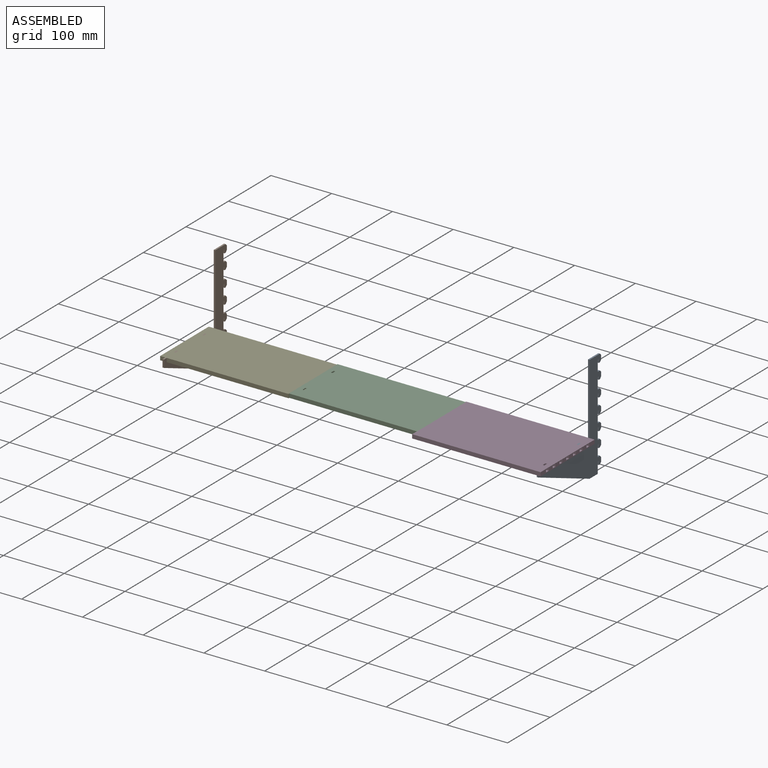
[diagram: assembled view]
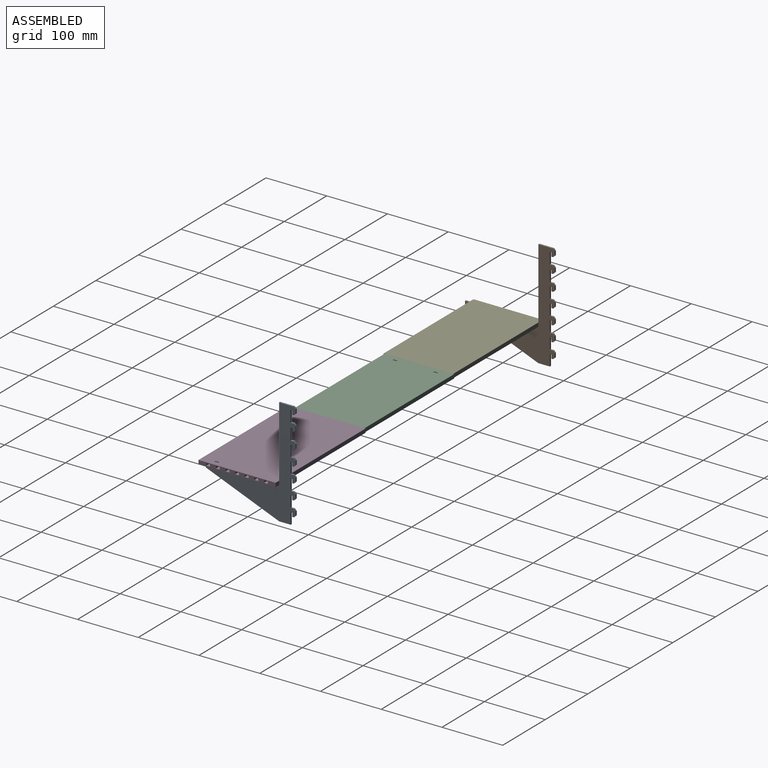
[diagram: assembled view, second angle]
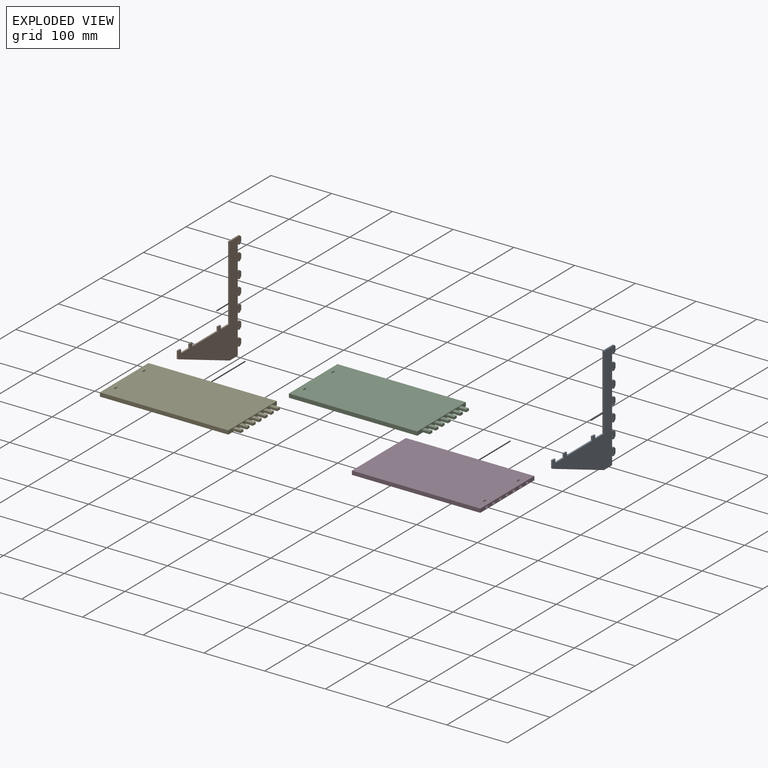
[diagram: exploded view]
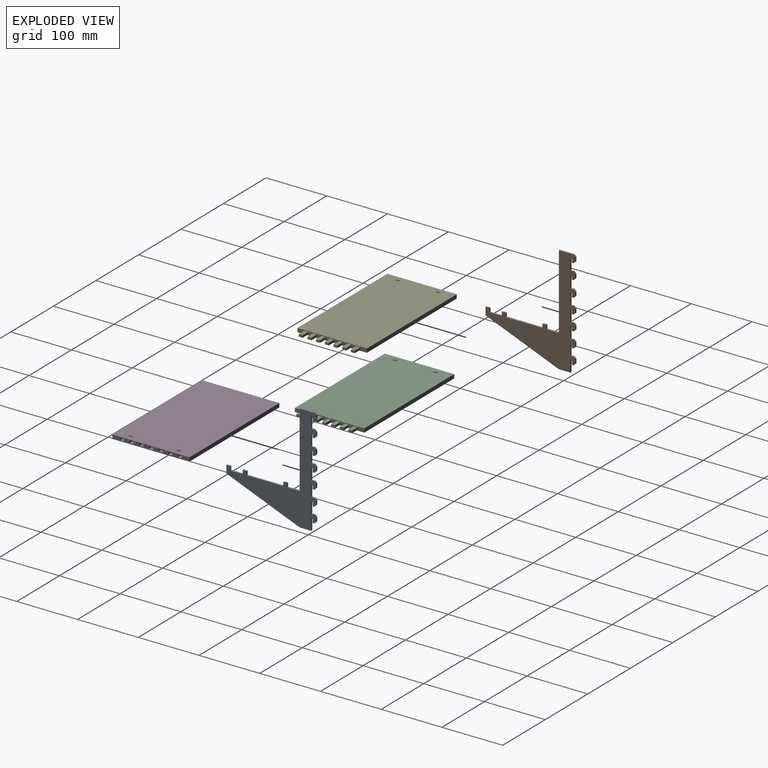
[diagram: exploded view, second angle]
ASSEMBLY  parts=5 mates=4
PART A: 73 faces, bbox 147.8x177x2.6 mm
  f0: plane 24.13x2.59mm, normal (0,1,0), area 62.5mm2, adj f56,f57,f58,f59
  f1: plane 19.05x2.59mm, normal (0,-1,0), area 49.4mm2, adj f2,f57,f58,f72
  f2: plane 18.6x2.59mm, normal (1,0,0), area 48.2mm2, adj f1,f3,f57,f58
  f3: plane 2.59x2.49mm, normal (0,-1,0), area 6.4mm2, adj f2,f4,f57,f58
  f4: plane 6.3x2.59mm, normal (-1,0,0), area 16.3mm2, adj f3,f5,f57,f58
  f5: plane 2.59x2.59mm, normal (0,-1,0), area 6.7mm2, adj f4,f6,f57,f58
  f6: plane 3x3mm, normal (0.71,-0.71,0), area 11mm2, adj f5,f7,f57,f58
  f7: plane 6.81x2.59mm, normal (1,0,0), area 17.6mm2, adj f6,f8,f57,f58
  f8: plane 3x3mm, normal (0.71,0.71,0), area 11mm2, adj f7,f9,f57,f58
  f9: plane 5.08x2.59mm, normal (0,1,0), area 13.2mm2, adj f8,f10,f57,f58
  f10: plane 18.59x2.59mm, normal (1,0,0), area 48.2mm2, adj f9,f11,f57,f58
  f11: plane 2.59x2.49mm, normal (0,-1,0), area 6.4mm2, adj f10,f12,f57,f58
  f12: plane 6.3x2.59mm, normal (-1,0,0), area 16.3mm2, adj f11,f13,f57,f58
  f13: plane 2.59x2.59mm, normal (0.01,-1,0), area 6.7mm2, adj f12,f14,f57,f58
  f14: plane 3x3mm, normal (0.71,-0.71,0), area 11mm2, adj f13,f15,f57,f58
  f15: plane 6.81x2.59mm, normal (1,0,0), area 17.6mm2, adj f14,f16,f57,f58
  f16: plane 3x3mm, normal (0.71,0.71,0), area 11mm2, adj f15,f17,f57,f58
  f17: plane 5.08x2.59mm, normal (0,1,0), area 13.2mm2, adj f16,f18,f57,f58
  f18: plane 18.59x2.59mm, normal (1,0,0), area 48.2mm2, adj f17,f19,f57,f58
  f19: plane 2.59x2.49mm, normal (0,-1,0), area 6.4mm2, adj f18,f20,f57,f58
  f20: plane 6.3x2.59mm, normal (-1,0,0), area 16.3mm2, adj f19,f21,f57,f58
  f21: plane 2.59x2.59mm, normal (0,-1,0), area 6.7mm2, adj f20,f22,f57,f58
  f22: plane 3x3mm, normal (0.71,-0.71,0), area 11mm2, adj f21,f23,f57,f58
  f23: plane 6.81x2.59mm, normal (1,0,0), area 17.6mm2, adj f22,f24,f57,f58
  f24: plane 3x3mm, normal (0.71,0.71,0), area 11mm2, adj f23,f25,f57,f58
  f25: plane 5.08x2.59mm, normal (0,1,0), area 13.2mm2, adj f24,f26,f57,f58
  f26: plane 18.59x2.59mm, normal (1,0,0), area 48.2mm2, adj f25,f27,f57,f58
  f27: plane 2.59x2.49mm, normal (0,-1,0), area 6.4mm2, adj f26,f28,f57,f58
  f28: plane 6.3x2.59mm, normal (-1,0,0), area 16.3mm2, adj f27,f29,f57,f58
  f29: plane 2.59x2.59mm, normal (0,-1,0), area 6.7mm2, adj f28,f30,f57,f58
  f30: plane 3x3mm, normal (0.71,-0.71,0), area 11mm2, adj f29,f31,f57,f58
  f31: plane 6.81x2.59mm, normal (1,0,0), area 17.6mm2, adj f30,f32,f57,f58
  f32: plane 3x3mm, normal (0.71,0.71,0), area 11mm2, adj f31,f33,f57,f58
  f33: plane 5.08x2.59mm, normal (0,1,0), area 13.2mm2, adj f32,f34,f57,f58
  f34: plane 18.59x2.59mm, normal (1,0,0), area 48.2mm2, adj f33,f35,f57,f58
  f35: plane 2.59x2.49mm, normal (0,-1,0), area 6.4mm2, adj f34,f36,f57,f58
  f36: plane 6.3x2.59mm, normal (-1,0,0), area 16.3mm2, adj f35,f37,f57,f58
  f37: plane 2.59x2.59mm, normal (-0.12,-0.99,0), area 6.8mm2, adj f36,f38,f57,f58
  f38: plane 3x3mm, normal (0.71,-0.71,0), area 11mm2, adj f37,f39,f57,f58
  f39: plane 6.81x2.59mm, normal (1,0,0), area 17.6mm2, adj f38,f40,f57,f58
  f40: plane 3x3mm, normal (0.71,0.71,0), area 11mm2, adj f39,f41,f57,f58
  f41: plane 5.08x2.59mm, normal (0,1,0), area 13.2mm2, adj f40,f42,f57,f58
  f42: plane 18.83x2.59mm, normal (1,0,0), area 48.8mm2, adj f41,f43,f57,f58
  f43: plane 2.59x2.49mm, normal (0,-1,0), area 6.4mm2, adj f42,f44,f57,f58
  f44: plane 4.98x2.59mm, normal (-1,0,0), area 12.9mm2, adj f43,f45,f57,f58
  f45: plane 2.59x2.59mm, normal (0,-1,0), area 6.7mm2, adj f44,f46,f57,f58
  f46: plane 3x3mm, normal (0.71,-0.71,0), area 11mm2, adj f45,f47,f57,f58
  f47: plane 6.81x2.59mm, normal (1,0,0), area 17.6mm2, adj f46,f48,f57,f58
  f48: plane 3x3mm, normal (0.71,0.71,0), area 11mm2, adj f47,f49,f57,f58
  f49: plane 5.08x2.59mm, normal (0,1,0), area 13.2mm2, adj f48,f50,f57,f58
  f50: plane 18.59x2.59mm, normal (1,0,0), area 48.2mm2, adj f49,f51,f57,f58
  f51: plane 2.59x2.49mm, normal (0,-1,0), area 6.4mm2, adj f50,f52,f57,f58
  f52: plane 6.3x2.59mm, normal (-1,0,0), area 16.3mm2, adj f51,f53,f57,f58
  f53: plane 2.59x2.59mm, normal (0,-1,0), area 6.7mm2, adj f52,f54,f57,f58
  f54: plane 3x3mm, normal (0.71,-0.71,0), area 11mm2, adj f53,f55,f57,f58
  f55: plane 6.81x2.59mm, normal (1,0,0), area 17.6mm2, adj f54,f56,f57,f58
  f56: plane 3x3mm, normal (0.71,0.71,0), area 11mm2, adj f0,f55,f57,f58
  f57: plane 176.96x147.78mm, normal (0,0,1), area 7683.1mm2, adj f0,f1,f2,f3,f4,f5,f6,f7
  f58: plane 176.96x147.78mm, normal (0,0,-1), area 7683.1mm2, adj f0,f1,f2,f3,f4,f5,f6,f7
  f59: plane 122.85x2.59mm, normal (-1,0,0), area 318.3mm2, adj f0,f57,f58,f60
  f60: plane 20.64x2.59mm, normal (0,1,0), area 53.5mm2, adj f57,f58,f59,f61
  f61: plane 6.35x2.59mm, normal (1,0,0), area 16.5mm2, adj f57,f58,f60,f62
  f62: plane 6.35x2.59mm, normal (0,1,0), area 16.5mm2, adj f57,f58,f61,f63
  f63: plane 6.35x2.59mm, normal (-1,0,0), area 16.5mm2, adj f57,f58,f62,f64
  f64: plane 60.33x2.59mm, normal (0,1,0), area 156.3mm2, adj f57,f58,f63,f65
  f65: plane 6.35x2.59mm, normal (1,0,0), area 16.5mm2, adj f57,f58,f64,f66
  f66: plane 6.35x2.59mm, normal (0,1,0), area 16.5mm2, adj f57,f58,f65,f67
  f67: plane 6.35x2.59mm, normal (-1,0,0), area 16.5mm2, adj f57,f58,f66,f68
  f68: plane 20.64x2.59mm, normal (0,1,0), area 53.5mm2, adj f57,f58,f67,f69
  f69: plane 6.35x2.59mm, normal (1,0,0), area 16.5mm2, adj f57,f58,f68,f70
  f70: plane 6.35x2.59mm, normal (0,1,0), area 16.5mm2, adj f57,f58,f69,f71
  f71: plane 12.53x2.59mm, normal (-1,0,0), area 32.5mm2, adj f57,f58,f70,f72
  f72: plane 120.65x47.93mm, normal (-0.37,-0.93,0), area 336.3mm2, adj f1,f57,f58,f71
PART B: same geometry as A
PART C: 84 faces, bbox 224.1x114.3x6.4 mm
  f0: plane 114.3x6.35mm, normal (-1,0,0), area 556.5mm2, adj f2,f3,f12,f13,f49,f50,f51,f52
  f1: plane 114.3x6.35mm, normal (1,0,0), area 556.5mm2, adj f2,f3,f12,f13,f14,f15,f16,f17
  f2: plane 211.43x6.35mm, normal (0,1,0), area 1342.6mm2, adj f0,f1,f12,f13
  f3: plane 211.43x6.35mm, normal (0,-1,0), area 1342.6mm2, adj f0,f1,f12,f13
  f4: plane 6.35x6.35mm, normal (-1,0,0), area 40.3mm2, adj f5,f10,f12,f13
  f5: plane 6.35x2.59mm, normal (0,1,0), area 16.5mm2, adj f4,f6,f12,f13
  f6: plane 6.35x6.35mm, normal (1,0,0), area 40.3mm2, adj f5,f10,f12,f13
  f7: plane 6.35x6.35mm, normal (-1,0,0), area 40.3mm2, adj f8,f11,f12,f13
  f8: plane 6.35x2.59mm, normal (0,1,0), area 16.5mm2, adj f7,f9,f12,f13
  f9: plane 6.35x6.35mm, normal (1,0,0), area 40.3mm2, adj f8,f11,f12,f13
  f10: plane 6.35x2.59mm, normal (0,-1,0), area 16.5mm2, adj f4,f6,f12,f13
  f11: plane 6.35x2.59mm, normal (0,-1,0), area 16.5mm2, adj f7,f9,f12,f13
  f12: plane 211.43x114.3mm, normal (0,0,1), area 24133.5mm2, adj f0,f1,f2,f3,f4,f5,f6,f7
  f13: plane 211.43x114.3mm, normal (0,0,-1), area 24133.5mm2, adj f0,f1,f2,f3,f4,f5,f6,f7
  f14: plane 12.7x3.81mm, normal (0,-1,0), area 48.4mm2, adj f1,f15,f17,f18
  f15: plane 12.7x6.35mm, normal (0,0,-1), area 80.6mm2, adj f1,f14,f16,f18
  f16: plane 12.7x3.81mm, normal (0,1,0), area 48.4mm2, adj f1,f15,f17,f18
  f17: plane 12.7x6.35mm, normal (0,0,1), area 80.6mm2, adj f1,f14,f16,f18
  f18: plane 6.35x3.81mm, normal (1,0,0), area 24.2mm2, adj f14,f15,f16,f17
  f19: plane 12.7x3.81mm, normal (0,-1,0), area 48.4mm2, adj f1,f20,f22,f23
  f20: plane 12.7x6.35mm, normal (0,0,-1), area 80.6mm2, adj f1,f19,f21,f23
  f21: plane 12.7x3.81mm, normal (0,1,0), area 48.4mm2, adj f1,f20,f22,f23
  f22: plane 12.7x6.35mm, normal (0,0,1), area 80.6mm2, adj f1,f19,f21,f23
  f23: plane 6.35x3.81mm, normal (1,0,0), area 24.2mm2, adj f19,f20,f21,f22
  f24: plane 12.7x3.81mm, normal (0,1,0), area 48.4mm2, adj f1,f25,f27,f28
  f25: plane 12.7x6.35mm, normal (0,0,1), area 80.6mm2, adj f1,f24,f26,f28
  f26: plane 12.7x3.81mm, normal (0,-1,0), area 48.4mm2, adj f1,f25,f27,f28
  f27: plane 12.7x6.35mm, normal (0,0,-1), area 80.6mm2, adj f1,f24,f26,f28
  f28: plane 6.35x3.81mm, normal (1,0,0), area 24.2mm2, adj f24,f25,f26,f27
  f29: plane 12.7x3.81mm, normal (0,1,0), area 48.4mm2, adj f1,f30,f32,f33
  f30: plane 12.7x6.35mm, normal (0,0,1), area 80.6mm2, adj f1,f29,f31,f33
  f31: plane 12.7x3.81mm, normal (0,-1,0), area 48.4mm2, adj f1,f30,f32,f33
  f32: plane 12.7x6.35mm, normal (0,0,-1), area 80.6mm2, adj f1,f29,f31,f33
  f33: plane 6.35x3.81mm, normal (1,0,0), area 24.2mm2, adj f29,f30,f31,f32
  f34: plane 12.7x3.81mm, normal (0,1,0), area 48.4mm2, adj f1,f35,f37,f38
  f35: plane 12.7x6.35mm, normal (0,0,1), area 80.6mm2, adj f1,f34,f36,f38
  f36: plane 12.7x3.81mm, normal (0,-1,0), area 48.4mm2, adj f1,f35,f37,f38
  f37: plane 12.7x6.35mm, normal (0,0,-1), area 80.6mm2, adj f1,f34,f36,f38
  f38: plane 6.35x3.81mm, normal (1,0,0), area 24.2mm2, adj f34,f35,f36,f37
  f39: plane 12.7x3.81mm, normal (0,1,0), area 48.4mm2, adj f1,f40,f42,f43
  f40: plane 12.7x6.35mm, normal (0,0,1), area 80.6mm2, adj f1,f39,f41,f43
  f41: plane 12.7x3.81mm, normal (0,-1,0), area 48.4mm2, adj f1,f40,f42,f43
  f42: plane 12.7x6.35mm, normal (0,0,-1), area 80.6mm2, adj f1,f39,f41,f43
  f43: plane 6.35x3.81mm, normal (1,0,0), area 24.2mm2, adj f39,f40,f41,f42
  f44: plane 12.7x3.81mm, normal (0,1,0), area 48.4mm2, adj f1,f45,f47,f48
  f45: plane 12.7x6.35mm, normal (0,0,1), area 80.6mm2, adj f1,f44,f46,f48
  f46: plane 12.7x3.81mm, normal (0,-1,0), area 48.4mm2, adj f1,f45,f47,f48
  f47: plane 12.7x6.35mm, normal (0,0,-1), area 80.6mm2, adj f1,f44,f46,f48
  f48: plane 6.35x3.81mm, normal (1,0,0), area 24.2mm2, adj f44,f45,f46,f47
  f49: plane 13.97x6.35mm, normal (0,0,-1), area 88.7mm2, adj f0,f50,f52,f53
  f50: plane 13.97x3.81mm, normal (0,-1,0), area 53.2mm2, adj f0,f49,f51,f53
  f51: plane 13.97x6.35mm, normal (0,0,1), area 88.7mm2, adj f0,f50,f52,f53
  f52: plane 13.97x3.81mm, normal (0,1,0), area 53.2mm2, adj f0,f49,f51,f53
  f53: plane 6.35x3.81mm, normal (-1,0,0), area 24.2mm2, adj f49,f50,f51,f52
  f54: plane 13.97x3.81mm, normal (0,1,0), area 53.2mm2, adj f0,f55,f57,f58
  f55: plane 13.97x6.35mm, normal (0,0,-1), area 88.7mm2, adj f0,f54,f56,f58
  f56: plane 13.97x3.81mm, normal (0,-1,0), area 53.2mm2, adj f0,f55,f57,f58
  f57: plane 13.97x6.35mm, normal (0,0,1), area 88.7mm2, adj f0,f54,f56,f58
  f58: plane 6.35x3.81mm, normal (-1,0,0), area 24.2mm2, adj f54,f55,f56,f57
  f59: plane 13.97x3.81mm, normal (0,1,0), area 53.2mm2, adj f0,f60,f62,f63
  f60: plane 13.97x6.35mm, normal (0,0,-1), area 88.7mm2, adj f0,f59,f61,f63
  f61: plane 13.97x3.81mm, normal (0,-1,0), area 53.2mm2, adj f0,f60,f62,f63
  f62: plane 13.97x6.35mm, normal (0,0,1), area 88.7mm2, adj f0,f59,f61,f63
  f63: plane 6.35x3.81mm, normal (-1,0,0), area 24.2mm2, adj f59,f60,f61,f62
  f64: plane 13.97x3.81mm, normal (0,1,0), area 53.2mm2, adj f0,f65,f67,f68
  f65: plane 13.97x6.35mm, normal (0,0,-1), area 88.7mm2, adj f0,f64,f66,f68
  f66: plane 13.97x3.81mm, normal (0,-1,0), area 53.2mm2, adj f0,f65,f67,f68
  f67: plane 13.97x6.35mm, normal (0,0,1), area 88.7mm2, adj f0,f64,f66,f68
  f68: plane 6.35x3.81mm, normal (-1,0,0), area 24.2mm2, adj f64,f65,f66,f67
  f69: plane 13.97x3.81mm, normal (0,1,0), area 53.2mm2, adj f0,f70,f72,f73
  f70: plane 13.97x6.35mm, normal (0,0,-1), area 88.7mm2, adj f0,f69,f71,f73
  f71: plane 13.97x3.81mm, normal (0,-1,0), area 53.2mm2, adj f0,f70,f72,f73
  f72: plane 13.97x6.35mm, normal (0,0,1), area 88.7mm2, adj f0,f69,f71,f73
  f73: plane 6.35x3.81mm, normal (-1,0,0), area 24.2mm2, adj f69,f70,f71,f72
  f74: plane 13.97x6.35mm, normal (0,0,-1), area 88.7mm2, adj f0,f75,f77,f78
  f75: plane 13.97x3.81mm, normal (0,-1,0), area 53.2mm2, adj f0,f74,f76,f78
  f76: plane 13.97x6.35mm, normal (0,0,1), area 88.7mm2, adj f0,f75,f77,f78
  f77: plane 13.97x3.81mm, normal (0,1,0), area 53.2mm2, adj f0,f74,f76,f78
  f78: plane 6.35x3.81mm, normal (-1,0,0), area 24.2mm2, adj f74,f75,f76,f77
  f79: plane 13.97x6.35mm, normal (0,0,-1), area 88.7mm2, adj f0,f80,f82,f83
  f80: plane 13.97x3.81mm, normal (0,-1,0), area 53.2mm2, adj f0,f79,f81,f83
  f81: plane 13.97x6.35mm, normal (0,0,1), area 88.7mm2, adj f0,f80,f82,f83
  f82: plane 13.97x3.81mm, normal (0,1,0), area 53.2mm2, adj f0,f79,f81,f83
  f83: plane 6.35x3.81mm, normal (-1,0,0), area 24.2mm2, adj f79,f80,f81,f82
PART D: 84 faces, bbox 211.4x127x6.4 mm
  f0: plane 127x6.35mm, normal (1,0,0), area 637.1mm2, adj f2,f3,f12,f13,f49,f50,f51,f52
  f1: plane 127x6.35mm, normal (-1,0,0), area 637.1mm2, adj f2,f3,f12,f13,f14,f15,f16,f17
  f2: plane 211.43x6.35mm, normal (0,1,0), area 1342.6mm2, adj f0,f1,f12,f13
  f3: plane 211.43x6.35mm, normal (0,-1,0), area 1342.6mm2, adj f0,f1,f12,f13
  f4: plane 6.35x6.35mm, normal (-1,0,0), area 40.3mm2, adj f5,f10,f12,f13
  f5: plane 6.35x2.59mm, normal (0,1,0), area 16.5mm2, adj f4,f6,f12,f13
  f6: plane 6.35x6.35mm, normal (1,0,0), area 40.3mm2, adj f5,f10,f12,f13
  f7: plane 6.35x6.35mm, normal (-1,0,0), area 40.3mm2, adj f8,f11,f12,f13
  f8: plane 6.35x2.59mm, normal (0,1,0), area 16.5mm2, adj f7,f9,f12,f13
  f9: plane 6.35x6.35mm, normal (1,0,0), area 40.3mm2, adj f8,f11,f12,f13
  f10: plane 6.35x2.59mm, normal (0,-1,0), area 16.5mm2, adj f4,f6,f12,f13
  f11: plane 6.35x2.59mm, normal (0,-1,0), area 16.5mm2, adj f7,f9,f12,f13
  f12: plane 211.43x127mm, normal (0,0,1), area 26818.7mm2, adj f0,f1,f2,f3,f4,f5,f6,f7
  f13: plane 211.43x127mm, normal (0,0,-1), area 26818.7mm2, adj f0,f1,f2,f3,f4,f5,f6,f7
  f14: plane 13.97x6.35mm, normal (0,0,-1), area 88.7mm2, adj f1,f15,f17,f18
  f15: plane 13.97x3.81mm, normal (0,-1,0), area 53.2mm2, adj f1,f14,f16,f18
  f16: plane 13.97x6.35mm, normal (0,0,1), area 88.7mm2, adj f1,f15,f17,f18
  f17: plane 13.97x3.81mm, normal (0,1,0), area 53.2mm2, adj f1,f14,f16,f18
  f18: plane 6.35x3.81mm, normal (-1,0,0), area 24.2mm2, adj f14,f15,f16,f17
  f19: plane 13.97x3.81mm, normal (0,1,0), area 53.2mm2, adj f1,f20,f22,f23
  f20: plane 13.97x6.35mm, normal (0,0,-1), area 88.7mm2, adj f1,f19,f21,f23
  f21: plane 13.97x3.81mm, normal (0,-1,0), area 53.2mm2, adj f1,f20,f22,f23
  f22: plane 13.97x6.35mm, normal (0,0,1), area 88.7mm2, adj f1,f19,f21,f23
  f23: plane 6.35x3.81mm, normal (-1,0,0), area 24.2mm2, adj f19,f20,f21,f22
  f24: plane 13.97x3.81mm, normal (0,1,0), area 53.2mm2, adj f1,f25,f27,f28
  f25: plane 13.97x6.35mm, normal (0,0,-1), area 88.7mm2, adj f1,f24,f26,f28
  f26: plane 13.97x3.81mm, normal (0,-1,0), area 53.2mm2, adj f1,f25,f27,f28
  f27: plane 13.97x6.35mm, normal (0,0,1), area 88.7mm2, adj f1,f24,f26,f28
  f28: plane 6.35x3.81mm, normal (-1,0,0), area 24.2mm2, adj f24,f25,f26,f27
  f29: plane 13.97x3.81mm, normal (0,1,0), area 53.2mm2, adj f1,f30,f32,f33
  f30: plane 13.97x6.35mm, normal (0,0,-1), area 88.7mm2, adj f1,f29,f31,f33
  f31: plane 13.97x3.81mm, normal (0,-1,0), area 53.2mm2, adj f1,f30,f32,f33
  f32: plane 13.97x6.35mm, normal (0,0,1), area 88.7mm2, adj f1,f29,f31,f33
  f33: plane 6.35x3.81mm, normal (-1,0,0), area 24.2mm2, adj f29,f30,f31,f32
  f34: plane 13.97x3.81mm, normal (0,1,0), area 53.2mm2, adj f1,f35,f37,f38
  f35: plane 13.97x6.35mm, normal (0,0,-1), area 88.7mm2, adj f1,f34,f36,f38
  f36: plane 13.97x3.81mm, normal (0,-1,0), area 53.2mm2, adj f1,f35,f37,f38
  f37: plane 13.97x6.35mm, normal (0,0,1), area 88.7mm2, adj f1,f34,f36,f38
  f38: plane 6.35x3.81mm, normal (-1,0,0), area 24.2mm2, adj f34,f35,f36,f37
  f39: plane 13.97x6.35mm, normal (0,0,-1), area 88.7mm2, adj f1,f40,f42,f43
  f40: plane 13.97x3.81mm, normal (0,-1,0), area 53.2mm2, adj f1,f39,f41,f43
  f41: plane 13.97x6.35mm, normal (0,0,1), area 88.7mm2, adj f1,f40,f42,f43
  f42: plane 13.97x3.81mm, normal (0,1,0), area 53.2mm2, adj f1,f39,f41,f43
  f43: plane 6.35x3.81mm, normal (-1,0,0), area 24.2mm2, adj f39,f40,f41,f42
  f44: plane 13.97x6.35mm, normal (0,0,-1), area 88.7mm2, adj f1,f45,f47,f48
  f45: plane 13.97x3.81mm, normal (0,-1,0), area 53.2mm2, adj f1,f44,f46,f48
  f46: plane 13.97x6.35mm, normal (0,0,1), area 88.7mm2, adj f1,f45,f47,f48
  f47: plane 13.97x3.81mm, normal (0,1,0), area 53.2mm2, adj f1,f44,f46,f48
  f48: plane 6.35x3.81mm, normal (-1,0,0), area 24.2mm2, adj f44,f45,f46,f47
  f49: plane 13.97x3.81mm, normal (0,-1,0), area 53.2mm2, adj f0,f50,f52,f53
  f50: plane 13.97x6.35mm, normal (0,0,-1), area 88.7mm2, adj f0,f49,f51,f53
  f51: plane 13.97x3.81mm, normal (0,1,0), area 53.2mm2, adj f0,f50,f52,f53
  f52: plane 13.97x6.35mm, normal (0,0,1), area 88.7mm2, adj f0,f49,f51,f53
  f53: plane 6.35x3.81mm, normal (1,0,0), area 24.2mm2, adj f49,f50,f51,f52
  f54: plane 13.97x3.81mm, normal (0,-1,0), area 53.2mm2, adj f0,f55,f57,f58
  f55: plane 13.97x6.35mm, normal (0,0,-1), area 88.7mm2, adj f0,f54,f56,f58
  f56: plane 13.97x3.81mm, normal (0,1,0), area 53.2mm2, adj f0,f55,f57,f58
  f57: plane 13.97x6.35mm, normal (0,0,1), area 88.7mm2, adj f0,f54,f56,f58
  f58: plane 6.35x3.81mm, normal (1,0,0), area 24.2mm2, adj f54,f55,f56,f57
  f59: plane 13.97x3.81mm, normal (0,-1,0), area 53.2mm2, adj f0,f60,f62,f63
  f60: plane 13.97x6.35mm, normal (0,0,-1), area 88.7mm2, adj f0,f59,f61,f63
  f61: plane 13.97x3.81mm, normal (0,1,0), area 53.2mm2, adj f0,f60,f62,f63
  f62: plane 13.97x6.35mm, normal (0,0,1), area 88.7mm2, adj f0,f59,f61,f63
  f63: plane 6.35x3.81mm, normal (1,0,0), area 24.2mm2, adj f59,f60,f61,f62
  f64: plane 13.97x3.81mm, normal (0,1,0), area 53.2mm2, adj f0,f65,f67,f68
  f65: plane 13.97x6.35mm, normal (0,0,1), area 88.7mm2, adj f0,f64,f66,f68
  f66: plane 13.97x3.81mm, normal (0,-1,0), area 53.2mm2, adj f0,f65,f67,f68
  f67: plane 13.97x6.35mm, normal (0,0,-1), area 88.7mm2, adj f0,f64,f66,f68
  f68: plane 6.35x3.81mm, normal (1,0,0), area 24.2mm2, adj f64,f65,f66,f67
  f69: plane 13.97x3.81mm, normal (0,-1,0), area 53.2mm2, adj f0,f70,f72,f73
  f70: plane 13.97x6.35mm, normal (0,0,-1), area 88.7mm2, adj f0,f69,f71,f73
  f71: plane 13.97x3.81mm, normal (0,1,0), area 53.2mm2, adj f0,f70,f72,f73
  f72: plane 13.97x6.35mm, normal (0,0,1), area 88.7mm2, adj f0,f69,f71,f73
  f73: plane 6.35x3.81mm, normal (1,0,0), area 24.2mm2, adj f69,f70,f71,f72
  f74: plane 13.97x3.81mm, normal (0,1,0), area 53.2mm2, adj f0,f75,f77,f78
  f75: plane 13.97x6.35mm, normal (0,0,1), area 88.7mm2, adj f0,f74,f76,f78
  f76: plane 13.97x3.81mm, normal (0,-1,0), area 53.2mm2, adj f0,f75,f77,f78
  f77: plane 13.97x6.35mm, normal (0,0,-1), area 88.7mm2, adj f0,f74,f76,f78
  f78: plane 6.35x3.81mm, normal (1,0,0), area 24.2mm2, adj f74,f75,f76,f77
  f79: plane 13.97x3.81mm, normal (0,-1,0), area 53.2mm2, adj f0,f80,f82,f83
  f80: plane 13.97x6.35mm, normal (0,0,-1), area 88.7mm2, adj f0,f79,f81,f83
  f81: plane 13.97x3.81mm, normal (0,1,0), area 53.2mm2, adj f0,f80,f82,f83
  f82: plane 13.97x6.35mm, normal (0,0,1), area 88.7mm2, adj f0,f79,f81,f83
  f83: plane 6.35x3.81mm, normal (1,0,0), area 24.2mm2, adj f79,f80,f81,f82
PART E: same geometry as C
PLACE A rot(axis=(0.58,0.58,0.58),120deg) t=(351.43,-94.76,421.91)mm
PLACE B rot(axis=(0.58,0.58,0.58),120deg) t=(-262.54,-97.94,421.91)mm
PLACE C rot(axis=(0.98,0.17,0.11),0deg) t=(44.44,-169.97,338.78)mm
PLACE D rot(axis=(0,-1,0),180deg) t=(255.24,-174.73,338.78)mm
PLACE E rot(axis=(0.98,0.17,0.11),0deg) t=(-166.35,-171.56,338.78)mm
MATE fastened B.f61 <-> E.f10  axis (0,1,0) through (-262.54,-135.04,338.78)mm
MATE fastened D.f51 <-> C.f46  axis (0,1,0) through (156.51,-130.28,338.78)mm
MATE fastened A.f63 <-> D.f5  axis (0,-1,0) through (351.43,-138.22,338.78)mm
MATE fastened E.f46 <-> C.f69  axis (0,-1,0) through (-54.29,-131.87,338.78)mm
